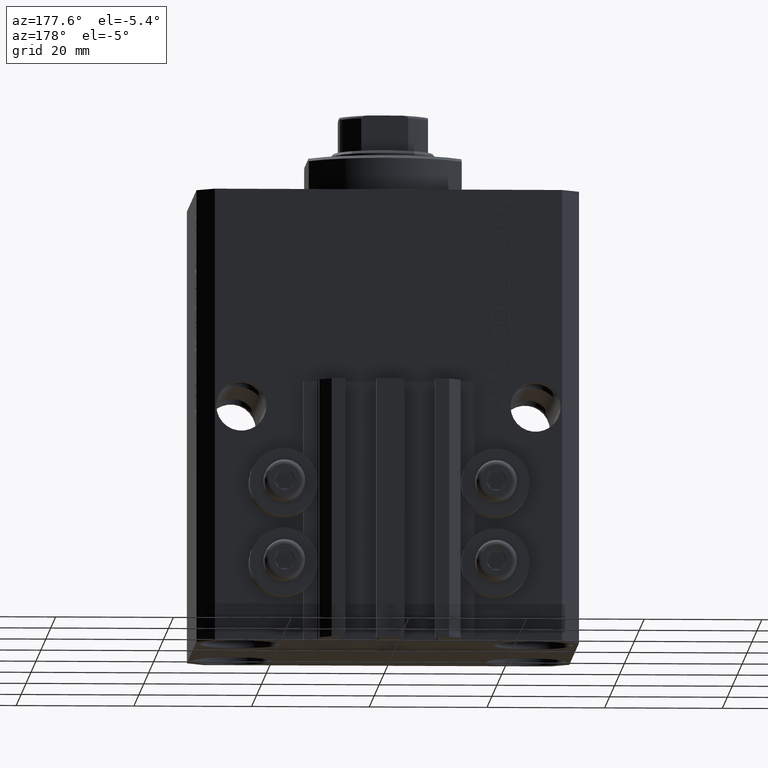
[diagram: clean part render]
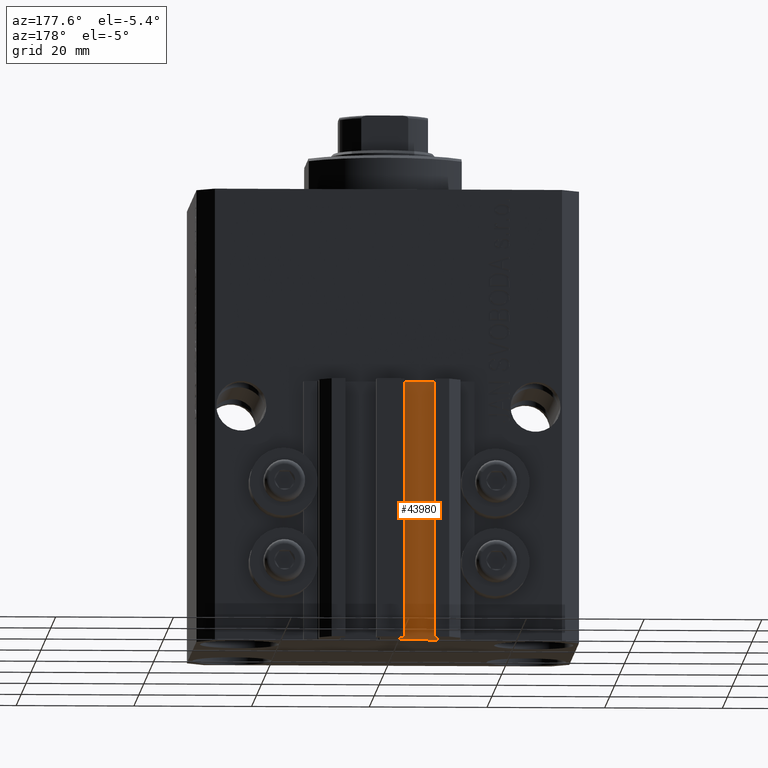
[diagram: same view with one face highlighted and labeled with its STEP entity id]
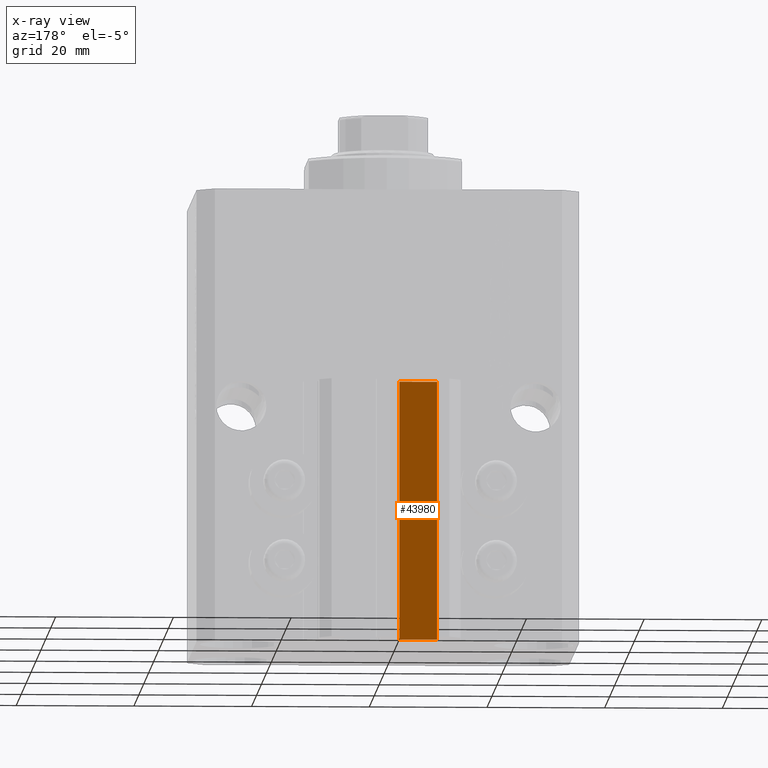
[diagram: x-ray of the same camera — body ghosted, the highlighted face saturated]
A machine part, auxiliary view. The second image highlights one B-rep face of the part: STEP entity #43980.
The next image is the same camera in x-ray: the body ghosted, the highlighted face saturated — about 0% of this face is hidden behind the body in this view.
In plain terms, the highlighted planar face has unit normal (0, 1, 0).
Its self-contained STEP definition (entity closure, byte-faithful):
#1925 = CARTESIAN_POINT ( 'NONE',  ( -1.800000000000000933, 24.49999999999949551, -77.00000000000000000 ) ) ;
#2675 = VECTOR ( 'NONE', #9264, 1000.000000000000000 ) ;
#4839 = ORIENTED_EDGE ( 'NONE', *, *, #44866, .T. ) ;
#4974 = VERTEX_POINT ( 'NONE', #40531 ) ;
#8884 = AXIS2_PLACEMENT_3D ( 'NONE', #39085, #38854, #28601 ) ;
#9264 = DIRECTION ( 'NONE',  ( -1.000000000000000000, 0.000000000000000000, 0.000000000000000000 ) ) ;
#11141 = CARTESIAN_POINT ( 'NONE',  ( -8.199999999999999289, 24.49999999999949551, -77.00000000000000000 ) ) ;
#11375 = LINE ( 'NONE', #11141, #29819 ) ;
#11495 = DIRECTION ( 'NONE',  ( -1.000000000000000000, 0.000000000000000000, 0.000000000000000000 ) ) ;
#11955 = CARTESIAN_POINT ( 'NONE',  ( -1.800000000000000933, 24.49999999999949551, -33.00000000000000000 ) ) ;
#13143 = LINE ( 'NONE', #1925, #13897 ) ;
#13334 = FACE_OUTER_BOUND ( 'NONE', #41757, .T. ) ;
#13549 = LINE ( 'NONE', #30989, #2675 ) ;
#13897 = VECTOR ( 'NONE', #42022, 1000.000000000000000 ) ;
#14052 = EDGE_CURVE ( 'NONE', #4974, #42079, #11375, .T. ) ;
#17391 = EDGE_CURVE ( 'NONE', #28501, #25315, #13143, .T. ) ;
#17827 = ORIENTED_EDGE ( 'NONE', *, *, #17391, .F. ) ;
#18657 = LINE ( 'NONE', #22706, #38621 ) ;
#22706 = CARTESIAN_POINT ( 'NONE',  ( -1.800000000000000933, 24.49999999999949551, -77.00000000000000000 ) ) ;
#24345 = CARTESIAN_POINT ( 'NONE',  ( -8.199999999999999289, 24.49999999999949551, -33.00000000000000000 ) ) ;
#25315 = VERTEX_POINT ( 'NONE', #11955 ) ;
#28501 = VERTEX_POINT ( 'NONE', #37263 ) ;
#28601 = DIRECTION ( 'NONE',  ( 0.000000000000000000, 0.000000000000000000, 1.000000000000000000 ) ) ;
#29819 = VECTOR ( 'NONE', #36665, 1000.000000000000000 ) ;
#30989 = CARTESIAN_POINT ( 'NONE',  ( -1.800000000000000933, 24.49999999999949551, -33.00000000000000000 ) ) ;
#36665 = DIRECTION ( 'NONE',  ( 0.000000000000000000, 0.000000000000000000, 1.000000000000000000 ) ) ;
#37263 = CARTESIAN_POINT ( 'NONE',  ( -1.800000000000000933, 24.49999999999949551, -77.00000000000000000 ) ) ;
#37721 = EDGE_CURVE ( 'NONE', #25315, #42079, #13549, .T. ) ;
#38621 = VECTOR ( 'NONE', #11495, 1000.000000000000000 ) ;
#38854 = DIRECTION ( 'NONE',  ( 0.000000000000000000, 1.000000000000000000, -0.000000000000000000 ) ) ;
#39085 = CARTESIAN_POINT ( 'NONE',  ( -1.800000000000000933, 24.49999999999949551, -77.00000000000000000 ) ) ;
#40424 = ORIENTED_EDGE ( 'NONE', *, *, #14052, .T. ) ;
#40531 = CARTESIAN_POINT ( 'NONE',  ( -8.199999999999999289, 24.49999999999949551, -77.00000000000000000 ) ) ;
#41757 = EDGE_LOOP ( 'NONE', ( #46026, #17827, #4839, #40424 ) ) ;
#42022 = DIRECTION ( 'NONE',  ( 0.000000000000000000, 0.000000000000000000, 1.000000000000000000 ) ) ;
#42079 = VERTEX_POINT ( 'NONE', #24345 ) ;
#43980 = ADVANCED_FACE ( 'NONE', ( #13334 ), #46013, .T. ) ;
#44866 = EDGE_CURVE ( 'NONE', #28501, #4974, #18657, .T. ) ;
#46013 = PLANE ( 'NONE',  #8884 ) ;
#46026 = ORIENTED_EDGE ( 'NONE', *, *, #37721, .F. ) ;